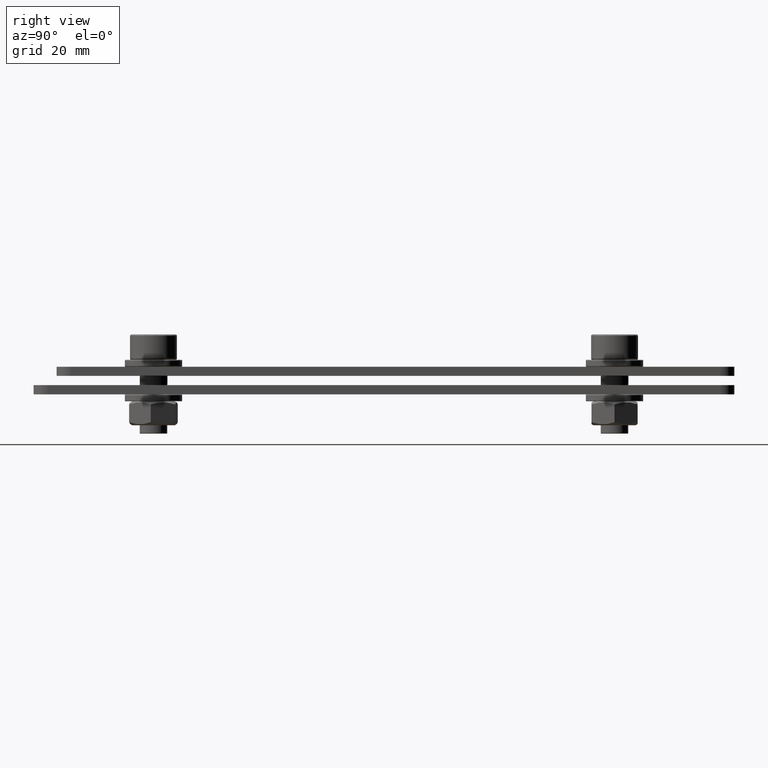
[diagram: clean part render]
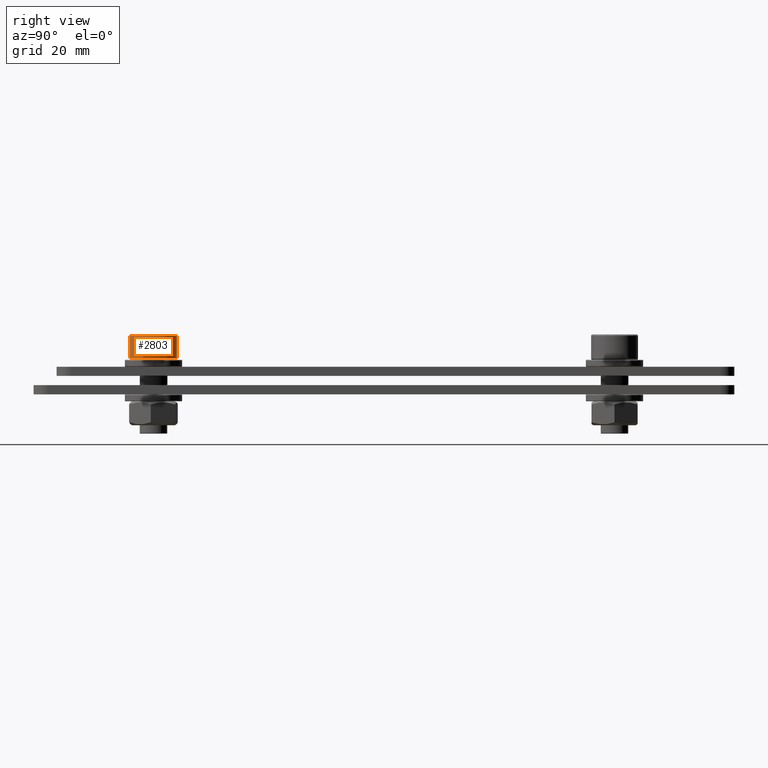
[diagram: same view with one face highlighted and labeled with its STEP entity id]
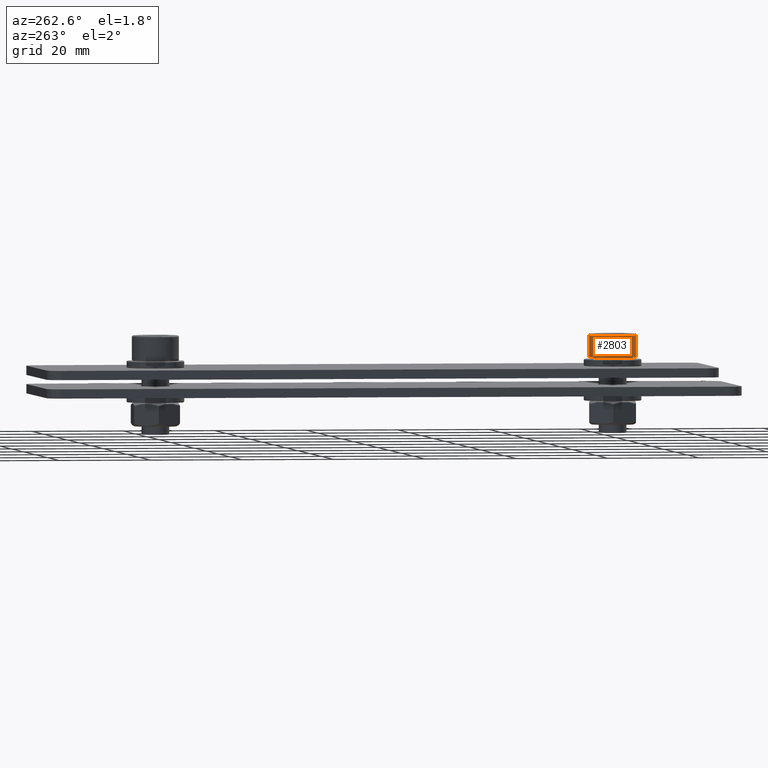
[diagram: same view with one face highlighted and labeled with its STEP entity id]
A machine part, right view. The second image highlights one B-rep face of the part: STEP entity #2803.
A second angle (auxiliary view) of the same face is appended — the face is thin or edge-on in the first view.
In plain terms, the highlighted cylindrical surface (bore or boss wall) has radius 5.1 mm, axis along (-0, 0, -1).
Its self-contained STEP definition (entity closure, byte-faithful):
#15 = DIRECTION ( 'NONE',  ( -0.5411393743287892244, 0.8409329209580550524, 0.000000000000000000 ) ) ;
#37 = ORIENTED_EDGE ( 'NONE', *, *, #2266, .F. ) ;
#117 = DIRECTION ( 'NONE',  ( -1.110223024625156417E-16, 8.628166150854816622E-32, -1.000000000000000000 ) ) ;
#248 = CIRCLE ( 'NONE', #2216, 5.099999999999998757 ) ;
#491 = CYLINDRICAL_SURFACE ( 'NONE', #3254, 5.099999999999998757 ) ;
#525 = FACE_OUTER_BOUND ( 'NONE', #2920, .T. ) ;
#543 = DIRECTION ( 'NONE',  ( -1.110223024625156417E-16, 8.628166150854816622E-32, -1.000000000000000000 ) ) ;
#600 = ORIENTED_EDGE ( 'NONE', *, *, #998, .T. ) ;
#941 = CARTESIAN_POINT ( 'NONE',  ( -20.00000000000001421, 26.00000000000000711, 5.800000000000006040 ) ) ;
#966 = CARTESIAN_POINT ( 'NONE',  ( -22.75981080907683918, 30.28875789688608577, 5.800000000000006040 ) ) ;
#998 = EDGE_CURVE ( 'NONE', #3264, #3264, #1653, .T. ) ;
#1319 = EDGE_LOOP ( 'NONE', ( #37 ) ) ;
#1376 = FACE_OUTER_BOUND ( 'NONE', #1319, .T. ) ;
#1559 = DIRECTION ( 'NONE',  ( -1.110223024625156417E-16, 8.628166150854816622E-32, -1.000000000000000000 ) ) ;
#1653 = CIRCLE ( 'NONE', #2951, 5.099999999999998757 ) ;
#1726 = DIRECTION ( 'NONE',  ( 0.5411393743287892244, -0.8409329209580550524, 0.000000000000000000 ) ) ;
#2216 = AXIS2_PLACEMENT_3D ( 'NONE', #941, #1559, #15 ) ;
#2266 = EDGE_CURVE ( 'NONE', #3613, #3613, #248, .T. ) ;
#2677 = CARTESIAN_POINT ( 'NONE',  ( -17.24018919092318924, 21.71124210311392488, 10.70000000000000639 ) ) ;
#2803 = ADVANCED_FACE ( 'NONE', ( #525, #1376 ), #491, .T. ) ;
#2920 = EDGE_LOOP ( 'NONE', ( #600 ) ) ;
#2951 = AXIS2_PLACEMENT_3D ( 'NONE', #3394, #117, #3680 ) ;
#3207 = CARTESIAN_POINT ( 'NONE',  ( -20.00000000000001421, 26.00000000000000711, 11.00000000000000711 ) ) ;
#3254 = AXIS2_PLACEMENT_3D ( 'NONE', #3207, #543, #1726 ) ;
#3264 = VERTEX_POINT ( 'NONE', #2677 ) ;
#3394 = CARTESIAN_POINT ( 'NONE',  ( -20.00000000000001421, 26.00000000000000711, 10.70000000000000639 ) ) ;
#3613 = VERTEX_POINT ( 'NONE', #966 ) ;
#3680 = DIRECTION ( 'NONE',  ( 0.5411393743287892244, -0.8409329209580550524, 0.000000000000000000 ) ) ;